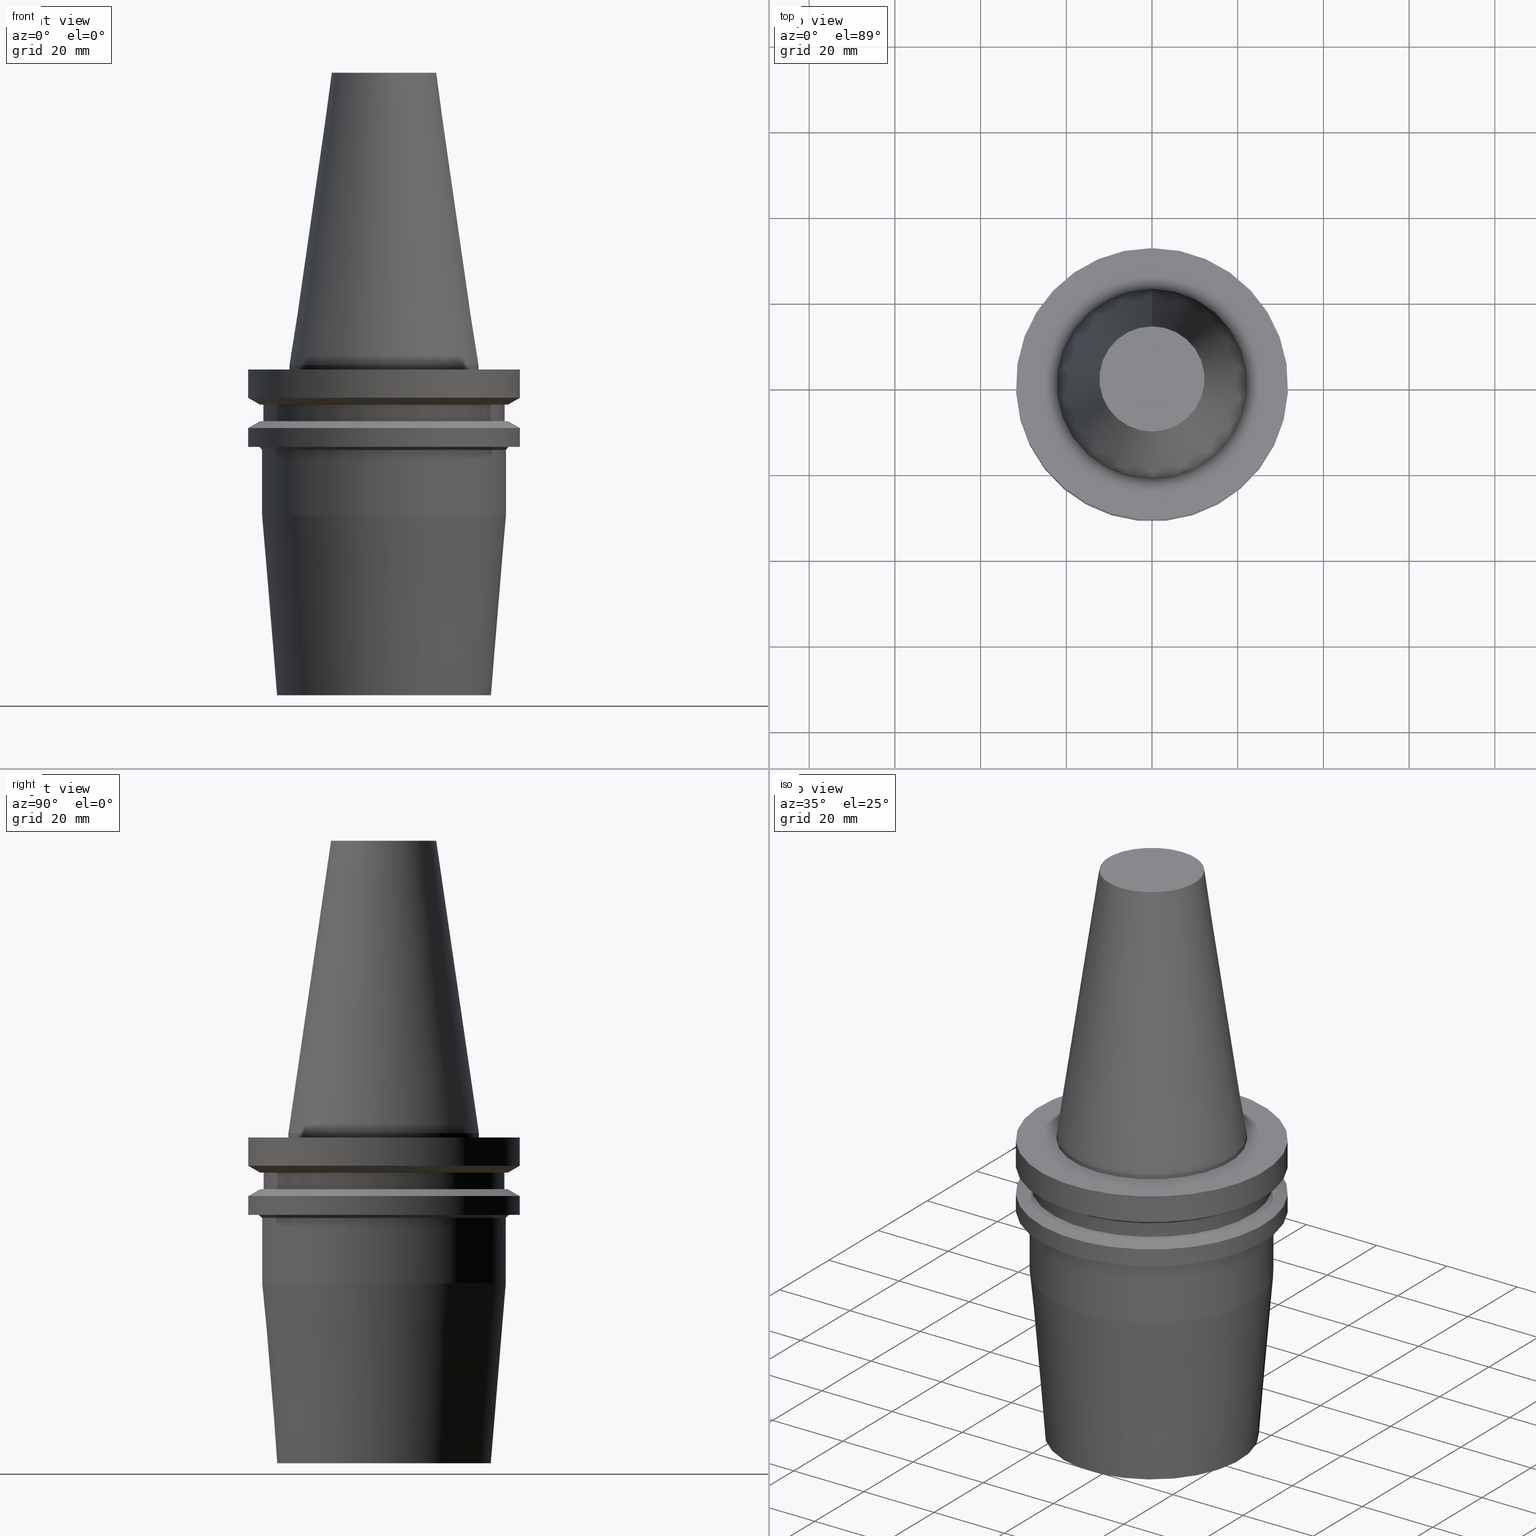
[diagram: canonical four-view strip — front | top / right | iso, engineering-drawing reading convention]
A machine part, canonical four-view strip (front | top / right | iso — engineering-drawing reading convention). The complete STEP part file that produces these views, byte-faithful:
ISO-10303-21;
HEADER;
FILE_DESCRIPTION((''),'1');
FILE_NAME('V:/01_Dxf_Field-HP\X2\FF71FF6FFF8CFF9F5916\X0\2013/BIGKAISER\X2\FF76FF80FF9BFF78FF9E63B28F095206\X0\_BKUS_201803/BCV_Y-S/BCV40Y-S50-3.stp','2018-03-13T06:02:44',(''),(''),'Spatial Interop R21 SP3','Kubotek KeyCreator 2011 V10.0.2 (22737)',' ');
FILE_SCHEMA(('automotive_design'));
ENDSEC;
DATA;
#1=MECHANICAL_DESIGN_GEOMETRIC_PRESENTATION_REPRESENTATION(' ',(#10,#11,#12,#13,#14,#15,#16,#17,#18,#19,#20,#21,#22,#23,#24,#25,#26,#27,#28,#29,#30,#31,#32,#33,#34,#35,#36,#37,#38,#39,#40,#41),#6);
#2=PRODUCT_DEFINITION_CONTEXT('',#42,'design');
#3=APPLICATION_PROTOCOL_DEFINITION('INTERNATIONAL STANDARD','automotive_design',1994,#42);
#4=PRODUCT_CATEGORY_RELATIONSHIP('NONE','NONE',#43,#44);
#5=SHAPE_DEFINITION_REPRESENTATION(#45,#46);
#6= (GEOMETRIC_REPRESENTATION_CONTEXT(3)GLOBAL_UNCERTAINTY_ASSIGNED_CONTEXT((#49))GLOBAL_UNIT_ASSIGNED_CONTEXT((#51,#52,#53))REPRESENTATION_CONTEXT('NONE','WORKSPACE'));
#10=STYLED_ITEM('',(#55),#56);
#11=STYLED_ITEM('',(#57,#58),#59);
#12=STYLED_ITEM('',(#60),#61);
#13=STYLED_ITEM('',(#62,#63),#64);
#14=STYLED_ITEM('',(#65,#66),#67);
#15=STYLED_ITEM('',(#68,#69),#70);
#16=STYLED_ITEM('',(#71),#72);
#17=STYLED_ITEM('',(#73,#74),#75);
#18=STYLED_ITEM('',(#76,#77),#78);
#19=STYLED_ITEM('',(#79),#80);
#20=STYLED_ITEM('',(#81),#82);
#21=STYLED_ITEM('',(#83,#84),#85);
#22=STYLED_ITEM('',(#86,#87),#88);
#23=STYLED_ITEM('',(#89,#90),#91);
#24=STYLED_ITEM('',(#92),#93);
#25=STYLED_ITEM('',(#94),#95);
#26=STYLED_ITEM('',(#96,#97),#98);
#27=STYLED_ITEM('',(#99),#100);
#28=STYLED_ITEM('',(#101,#102),#103);
#29=STYLED_ITEM('',(#104),#105);
#30=STYLED_ITEM('',(#106,#107),#108);
#31=STYLED_ITEM('',(#109),#110);
#32=STYLED_ITEM('',(#111),#112);
#33=STYLED_ITEM('',(#113,#114),#115);
#34=STYLED_ITEM('',(#116,#117),#118);
#35=STYLED_ITEM('',(#119),#120);
#36=STYLED_ITEM('',(#121,#122),#123);
#37=STYLED_ITEM('',(#124,#125),#126);
#38=STYLED_ITEM('',(#127),#128);
#39=STYLED_ITEM('',(#129,#130),#131);
#40=STYLED_ITEM('',(#132),#133);
#41=STYLED_ITEM('',(#134),#135);
#42=APPLICATION_CONTEXT(' ');
#43=PRODUCT_CATEGORY('part','NONE');
#44=PRODUCT_RELATED_PRODUCT_CATEGORY('detail',' ',(#136));
#45=PRODUCT_DEFINITION_SHAPE('NONE','NONE',#137);
#46=ADVANCED_BREP_SHAPE_REPRESENTATION('Unnamed[1]',(#85,#138),#6);
#49=UNCERTAINTY_MEASURE_WITH_UNIT(LENGTH_MEASURE(1.0E-006),#51,'','');
#51= (CONVERSION_BASED_UNIT('MILLIMETRE',#141)LENGTH_UNIT()NAMED_UNIT(#144));
#52= (NAMED_UNIT(#146)PLANE_ANGLE_UNIT()SI_UNIT($,.RADIAN.));
#53= (NAMED_UNIT(#146)SOLID_ANGLE_UNIT()SI_UNIT($,.STERADIAN.));
#55=PRESENTATION_STYLE_ASSIGNMENT((#152));
#56=EDGE_CURVE('Unnamed[1]',#153,#153,#154,.T.);
#57=PRESENTATION_STYLE_ASSIGNMENT((#155));
#58=PRESENTATION_STYLE_ASSIGNMENT((#156));
#59=ADVANCED_FACE('Unnamed[1]',(#157,#158),#159,.T.);
#60=PRESENTATION_STYLE_ASSIGNMENT((#160));
#61=EDGE_CURVE('Unnamed[1]',#161,#161,#162,.T.);
#62=PRESENTATION_STYLE_ASSIGNMENT((#163));
#63=PRESENTATION_STYLE_ASSIGNMENT((#164));
#64=ADVANCED_FACE('Unnamed[1]',(#165,#166),#167,.T.);
#65=PRESENTATION_STYLE_ASSIGNMENT((#168));
#66=PRESENTATION_STYLE_ASSIGNMENT((#169));
#67=ADVANCED_FACE('Unnamed[1]',(#170),#171,.T.);
#68=PRESENTATION_STYLE_ASSIGNMENT((#172));
#69=PRESENTATION_STYLE_ASSIGNMENT((#173));
#70=ADVANCED_FACE('Unnamed[1]',(#174,#175),#176,.T.);
#71=PRESENTATION_STYLE_ASSIGNMENT((#177));
#72=EDGE_CURVE('Unnamed[1]',#178,#178,#179,.T.);
#73=PRESENTATION_STYLE_ASSIGNMENT((#180));
#74=PRESENTATION_STYLE_ASSIGNMENT((#181));
#75=ADVANCED_FACE('Unnamed[1]',(#182,#183),#184,.T.);
#76=PRESENTATION_STYLE_ASSIGNMENT((#185));
#77=PRESENTATION_STYLE_ASSIGNMENT((#186));
#78=ADVANCED_FACE('Unnamed[1]',(#187,#188),#189,.T.);
#79=PRESENTATION_STYLE_ASSIGNMENT((#190));
#80=EDGE_CURVE('Unnamed[1]',#191,#191,#192,.T.);
#81=PRESENTATION_STYLE_ASSIGNMENT((#193));
#82=EDGE_CURVE('Unnamed[1]',#194,#194,#195,.T.);
#83=PRESENTATION_STYLE_ASSIGNMENT((#196));
#84=PRESENTATION_STYLE_ASSIGNMENT((#197));
#85=MANIFOLD_SOLID_BREP('Unnamed[1]',#198);
#86=PRESENTATION_STYLE_ASSIGNMENT((#199));
#87=PRESENTATION_STYLE_ASSIGNMENT((#200));
#88=ADVANCED_FACE('Unnamed[1]',(#201,#202),#203,.T.);
#89=PRESENTATION_STYLE_ASSIGNMENT((#204));
#90=PRESENTATION_STYLE_ASSIGNMENT((#205));
#91=ADVANCED_FACE('Unnamed[1]',(#206,#207),#208,.T.);
#92=PRESENTATION_STYLE_ASSIGNMENT((#209));
#93=EDGE_CURVE('Unnamed[1]',#210,#210,#211,.T.);
#94=PRESENTATION_STYLE_ASSIGNMENT((#212));
#95=EDGE_CURVE('Unnamed[1]',#213,#213,#214,.T.);
#96=PRESENTATION_STYLE_ASSIGNMENT((#215));
#97=PRESENTATION_STYLE_ASSIGNMENT((#216));
#98=ADVANCED_FACE('Unnamed[1]',(#217),#218,.T.);
#99=PRESENTATION_STYLE_ASSIGNMENT((#219));
#100=EDGE_CURVE('Unnamed[1]',#220,#220,#221,.T.);
#101=PRESENTATION_STYLE_ASSIGNMENT((#222));
#102=PRESENTATION_STYLE_ASSIGNMENT((#223));
#103=ADVANCED_FACE('Unnamed[1]',(#224,#225),#226,.T.);
#104=PRESENTATION_STYLE_ASSIGNMENT((#227));
#105=EDGE_CURVE('Unnamed[1]',#228,#228,#229,.T.);
#106=PRESENTATION_STYLE_ASSIGNMENT((#230));
#107=PRESENTATION_STYLE_ASSIGNMENT((#231));
#108=ADVANCED_FACE('Unnamed[1]',(#232,#233),#234,.T.);
#109=PRESENTATION_STYLE_ASSIGNMENT((#235));
#110=EDGE_CURVE('Unnamed[1]',#236,#236,#237,.T.);
#111=PRESENTATION_STYLE_ASSIGNMENT((#238));
#112=EDGE_CURVE('Unnamed[1]',#239,#239,#240,.T.);
#113=PRESENTATION_STYLE_ASSIGNMENT((#241));
#114=PRESENTATION_STYLE_ASSIGNMENT((#242));
#115=ADVANCED_FACE('Unnamed[1]',(#243,#244),#245,.T.);
#116=PRESENTATION_STYLE_ASSIGNMENT((#246));
#117=PRESENTATION_STYLE_ASSIGNMENT((#247));
#118=ADVANCED_FACE('Unnamed[1]',(#248,#249),#250,.T.);
#119=PRESENTATION_STYLE_ASSIGNMENT((#251));
#120=EDGE_CURVE('Unnamed[1]',#252,#252,#253,.T.);
#121=PRESENTATION_STYLE_ASSIGNMENT((#254));
#122=PRESENTATION_STYLE_ASSIGNMENT((#255));
#123=ADVANCED_FACE('Unnamed[1]',(#256,#257),#258,.T.);
#124=PRESENTATION_STYLE_ASSIGNMENT((#259));
#125=PRESENTATION_STYLE_ASSIGNMENT((#260));
#126=ADVANCED_FACE('Unnamed[1]',(#261,#262),#263,.T.);
#127=PRESENTATION_STYLE_ASSIGNMENT((#264));
#128=EDGE_CURVE('Unnamed[1]',#265,#265,#266,.T.);
#129=PRESENTATION_STYLE_ASSIGNMENT((#267));
#130=PRESENTATION_STYLE_ASSIGNMENT((#268));
#131=ADVANCED_FACE('Unnamed[1]',(#269,#270),#271,.T.);
#132=PRESENTATION_STYLE_ASSIGNMENT((#272));
#133=EDGE_CURVE('Unnamed[1]',#273,#273,#274,.T.);
#134=PRESENTATION_STYLE_ASSIGNMENT((#275));
#135=EDGE_CURVE('Unnamed[1]',#276,#276,#277,.T.);
#136=PRODUCT('Unnamed[1]','Unnamed[1]','PART-Unnamed[1]-DESC',(#278));
#137=PRODUCT_DEFINITION('NONE','NONE',#279,#2);
#138=AXIS2_PLACEMENT_3D('',#280,#281,#282);
#141=LENGTH_MEASURE_WITH_UNIT(LENGTH_MEASURE(1.0),#283);
#144=DIMENSIONAL_EXPONENTS(1.0,0.0,0.0,0.0,0.0,0.0,0.0);
#146=DIMENSIONAL_EXPONENTS(0.0,0.0,0.0,0.0,0.0,0.0,0.0);
#152=CURVE_STYLE('',#284,POSITIVE_LENGTH_MEASURE(1000.0),#285);
#153=VERTEX_POINT('',#286);
#154=CIRCLE('',#287,28.9680375505324);
#155=SURFACE_STYLE_USAGE(.BOTH.,#288);
#156=CURVE_STYLE('',#289,POSITIVE_LENGTH_MEASURE(1000.0),#290);
#157=FACE_BOUND('',#291,.T.);
#158=FACE_BOUND('',#292,.T.);
#159=CYLINDRICAL_SURFACE('',#293,22.225);
#160=CURVE_STYLE('',#294,POSITIVE_LENGTH_MEASURE(1000.0),#295);
#161=VERTEX_POINT('',#296);
#162=CIRCLE('',#297,28.5000000000002);
#163=SURFACE_STYLE_USAGE(.BOTH.,#298);
#164=CURVE_STYLE('',#299,POSITIVE_LENGTH_MEASURE(1000.0),#300);
#165=FACE_BOUND('',#301,.T.);
#166=FACE_BOUND('',#302,.T.);
#167=CONICAL_SURFACE('',#303,26.75,0.083141231888442);
#168=SURFACE_STYLE_USAGE(.BOTH.,#304);
#169=CURVE_STYLE('',#305,POSITIVE_LENGTH_MEASURE(1000.0),#306);
#170=FACE_OUTER_BOUND('',#307,.T.);
#171=PLANE('',#308);
#172=SURFACE_STYLE_USAGE(.BOTH.,#309);
#173=CURVE_STYLE('',#310,POSITIVE_LENGTH_MEASURE(1000.0),#311);
#174=FACE_BOUND('',#312,.T.);
#175=FACE_BOUND('',#313,.T.);
#176=CONICAL_SURFACE('',#314,30.3590187752662,1.0471975511966);
#177=CURVE_STYLE('',#315,POSITIVE_LENGTH_MEASURE(1000.0),#316);
#178=VERTEX_POINT('',#317);
#179=CIRCLE('',#318,28.18);
#180=SURFACE_STYLE_USAGE(.BOTH.,#319);
#181=CURVE_STYLE('',#320,POSITIVE_LENGTH_MEASURE(1000.0),#321);
#182=FACE_BOUND('',#322,.T.);
#183=FACE_BOUND('',#323,.T.);
#184=CONICAL_SURFACE('',#324,28.8500000000001,0.785398163397339);
#185=SURFACE_STYLE_USAGE(.BOTH.,#325);
#186=CURVE_STYLE('',#326,POSITIVE_LENGTH_MEASURE(1000.0),#327);
#187=FACE_BOUND('',#328,.T.);
#188=FACE_OUTER_BOUND('',#329,.T.);
#189=PLANE('',#330);
#190=CURVE_STYLE('',#331,POSITIVE_LENGTH_MEASURE(1000.0),#332);
#191=VERTEX_POINT('',#333);
#192=CIRCLE('',#334,28.5000000000001);
#193=CURVE_STYLE('',#335,POSITIVE_LENGTH_MEASURE(1000.0),#336);
#194=VERTEX_POINT('',#337);
#195=CIRCLE('',#338,22.225);
#196=SURFACE_STYLE_USAGE(.BOTH.,#339);
#197=CURVE_STYLE('',#340,POSITIVE_LENGTH_MEASURE(1000.0),#341);
#198=CLOSED_SHELL('',(#67,#103,#59,#115,#118,#108,#91,#123,#88,#70,#131,#78,#75,#126,#64,#98));
#199=SURFACE_STYLE_USAGE(.BOTH.,#342);
#200=CURVE_STYLE('',#343,POSITIVE_LENGTH_MEASURE(1000.0),#344);
#201=FACE_OUTER_BOUND('',#345,.T.);
#202=FACE_BOUND('',#346,.T.);
#203=PLANE('',#347);
#204=SURFACE_STYLE_USAGE(.BOTH.,#348);
#205=CURVE_STYLE('',#349,POSITIVE_LENGTH_MEASURE(1000.0),#350);
#206=FACE_BOUND('',#351,.T.);
#207=FACE_OUTER_BOUND('',#352,.T.);
#208=PLANE('',#353);
#209=CURVE_STYLE('',#354,POSITIVE_LENGTH_MEASURE(1000.0),#355);
#210=VERTEX_POINT('',#356);
#211=CIRCLE('',#357,31.75);
#212=CURVE_STYLE('',#358,POSITIVE_LENGTH_MEASURE(1000.0),#359);
#213=VERTEX_POINT('',#360);
#214=CIRCLE('',#361,29.2);
#215=SURFACE_STYLE_USAGE(.BOTH.,#362);
#216=CURVE_STYLE('',#363,POSITIVE_LENGTH_MEASURE(1000.0),#364);
#217=FACE_OUTER_BOUND('',#365,.T.);
#218=PLANE('',#366);
#219=CURVE_STYLE('',#367,POSITIVE_LENGTH_MEASURE(1000.0),#368);
#220=VERTEX_POINT('',#369);
#221=CIRCLE('',#370,22.225);
#222=SURFACE_STYLE_USAGE(.BOTH.,#371);
#223=CURVE_STYLE('',#372,POSITIVE_LENGTH_MEASURE(1000.0),#373);
#224=FACE_BOUND('',#374,.T.);
#225=FACE_BOUND('',#375,.T.);
#226=CONICAL_SURFACE('',#376,17.2484375007384,0.144812498217751);
#227=CURVE_STYLE('',#377,POSITIVE_LENGTH_MEASURE(1000.0),#378);
#228=VERTEX_POINT('',#379);
#229=CIRCLE('',#380,28.18);
#230=SURFACE_STYLE_USAGE(.BOTH.,#381);
#231=CURVE_STYLE('',#382,POSITIVE_LENGTH_MEASURE(1000.0),#383);
#232=FACE_BOUND('',#384,.T.);
#233=FACE_BOUND('',#385,.T.);
#234=CONICAL_SURFACE('',#386,30.3590187752662,1.0471975511966);
#235=CURVE_STYLE('',#387,POSITIVE_LENGTH_MEASURE(1000.0),#388);
#236=VERTEX_POINT('',#389);
#237=CIRCLE('',#390,25.0);
#238=CURVE_STYLE('',#391,POSITIVE_LENGTH_MEASURE(1000.0),#392);
#239=VERTEX_POINT('',#393);
#240=CIRCLE('',#394,12.2718750014768);
#241=SURFACE_STYLE_USAGE(.BOTH.,#395);
#242=CURVE_STYLE('',#396,POSITIVE_LENGTH_MEASURE(1000.0),#397);
#243=FACE_OUTER_BOUND('',#398,.T.);
#244=FACE_BOUND('',#399,.T.);
#245=PLANE('',#400);
#246=SURFACE_STYLE_USAGE(.BOTH.,#401);
#247=CURVE_STYLE('',#402,POSITIVE_LENGTH_MEASURE(1000.0),#403);
#248=FACE_BOUND('',#404,.T.);
#249=FACE_BOUND('',#405,.T.);
#250=CYLINDRICAL_SURFACE('',#406,31.75);
#251=CURVE_STYLE('',#407,POSITIVE_LENGTH_MEASURE(1000.0),#408);
#252=VERTEX_POINT('',#409);
#253=CIRCLE('',#410,31.75);
#254=SURFACE_STYLE_USAGE(.BOTH.,#411);
#255=CURVE_STYLE('',#412,POSITIVE_LENGTH_MEASURE(1000.0),#413);
#256=FACE_BOUND('',#414,.T.);
#257=FACE_BOUND('',#415,.T.);
#258=CYLINDRICAL_SURFACE('',#416,28.18);
#259=SURFACE_STYLE_USAGE(.BOTH.,#417);
#260=CURVE_STYLE('',#418,POSITIVE_LENGTH_MEASURE(1000.0),#419);
#261=FACE_BOUND('',#420,.T.);
#262=FACE_BOUND('',#421,.T.);
#263=CYLINDRICAL_SURFACE('',#422,28.5000000000001);
#264=CURVE_STYLE('',#423,POSITIVE_LENGTH_MEASURE(1000.0),#424);
#265=VERTEX_POINT('',#425);
#266=CIRCLE('',#426,31.75);
#267=SURFACE_STYLE_USAGE(.BOTH.,#427);
#268=CURVE_STYLE('',#428,POSITIVE_LENGTH_MEASURE(1000.0),#429);
#269=FACE_BOUND('',#430,.T.);
#270=FACE_BOUND('',#431,.T.);
#271=CYLINDRICAL_SURFACE('',#432,31.75);
#272=CURVE_STYLE('',#433,POSITIVE_LENGTH_MEASURE(1000.0),#434);
#273=VERTEX_POINT('',#435);
#274=CIRCLE('',#436,31.75);
#275=CURVE_STYLE('',#437,POSITIVE_LENGTH_MEASURE(1000.0),#438);
#276=VERTEX_POINT('',#439);
#277=CIRCLE('',#440,28.9680375505323);
#278=PRODUCT_CONTEXT('',#42,'mechanical');
#279=PRODUCT_DEFINITION_FORMATION_WITH_SPECIFIED_SOURCE(' ','NONE',#136,.NOT_KNOWN.);
#280=CARTESIAN_POINT('',(0.0,0.0,0.0));
#281=DIRECTION('',(0.0,0.0,1.0));
#282=DIRECTION('',(1.0,0.0,0.0));
#283= (NAMED_UNIT(#144)LENGTH_UNIT()SI_UNIT(.MILLI.,.METRE.));
#284=DRAUGHTING_PRE_DEFINED_CURVE_FONT('continuous');
#285=COLOUR_RGB('',0.0,1.0,0.0);
#286=CARTESIAN_POINT('',(7.98469713044073E-016,28.9680375505324,-13.04));
#287=AXIS2_PLACEMENT_3D('',#442,#443,#444);
#288=SURFACE_SIDE_STYLE('',(#445));
#289=DRAUGHTING_PRE_DEFINED_CURVE_FONT('continuous');
#290=COLOUR_RGB('',0.0,1.0,0.0);
#291=EDGE_LOOP('',(#446));
#292=EDGE_LOOP('',(#447));
#293=AXIS2_PLACEMENT_3D('',#448,#449,#450);
#294=DRAUGHTING_PRE_DEFINED_CURVE_FONT('continuous');
#295=COLOUR_RGB('',0.0,1.0,0.0);
#296=CARTESIAN_POINT('',(1.20933871415802E-015,28.5000000000002,-19.7500000000001));
#297=AXIS2_PLACEMENT_3D('',#451,#452,#453);
#298=SURFACE_SIDE_STYLE('',(#454));
#299=DRAUGHTING_PRE_DEFINED_CURVE_FONT('continuous');
#300=COLOUR_RGB('',0.0,1.0,0.0);
#301=EDGE_LOOP('',(#455));
#302=EDGE_LOOP('',(#456));
#303=AXIS2_PLACEMENT_3D('',#457,#458,#459);
#304=SURFACE_SIDE_STYLE('',(#460));
#305=DRAUGHTING_PRE_DEFINED_CURVE_FONT('continuous');
#306=COLOUR_RGB('',0.0,1.0,0.0);
#307=EDGE_LOOP('',(#461));
#308=AXIS2_PLACEMENT_3D('',#462,#463,#464);
#309=SURFACE_SIDE_STYLE('',(#465));
#310=DRAUGHTING_PRE_DEFINED_CURVE_FONT('continuous');
#311=COLOUR_RGB('',0.0,1.0,0.0);
#312=EDGE_LOOP('',(#466));
#313=EDGE_LOOP('',(#467));
#314=AXIS2_PLACEMENT_3D('',#468,#469,#470);
#315=DRAUGHTING_PRE_DEFINED_CURVE_FONT('continuous');
#316=COLOUR_RGB('',0.0,1.0,0.0);
#317=CARTESIAN_POINT('',(5.63337527607784E-016,28.18,-9.20000000000003));
#318=AXIS2_PLACEMENT_3D('',#471,#472,#473);
#319=SURFACE_SIDE_STYLE('',(#474));
#320=DRAUGHTING_PRE_DEFINED_CURVE_FONT('continuous');
#321=COLOUR_RGB('',0.0,1.0,0.0);
#322=EDGE_LOOP('',(#475));
#323=EDGE_LOOP('',(#476));
#324=AXIS2_PLACEMENT_3D('',#477,#478,#479);
#325=SURFACE_SIDE_STYLE('',(#480));
#326=DRAUGHTING_PRE_DEFINED_CURVE_FONT('continuous');
#327=COLOUR_RGB('',0.0,1.0,0.0);
#328=EDGE_LOOP('',(#481));
#329=EDGE_LOOP('',(#482));
#330=AXIS2_PLACEMENT_3D('',#483,#484,#485);
#331=DRAUGHTING_PRE_DEFINED_CURVE_FONT('continuous');
#332=COLOUR_RGB('',0.0,1.0,0.0);
#333=CARTESIAN_POINT('',(2.14313189850787E-015,28.5,-35.0));
#334=AXIS2_PLACEMENT_3D('',#486,#487,#488);
#335=DRAUGHTING_PRE_DEFINED_CURVE_FONT('continuous');
#336=COLOUR_RGB('',0.0,1.0,0.0);
#337=CARTESIAN_POINT('',(6.12323399573674E-017,22.225,-0.999999999999997));
#338=AXIS2_PLACEMENT_3D('',#489,#490,#491);
#339=SURFACE_SIDE_STYLE('',(#492));
#340=DRAUGHTING_PRE_DEFINED_CURVE_FONT('continuous');
#341=COLOUR_RGB('',0.0,1.0,0.0);
#342=SURFACE_SIDE_STYLE('',(#493));
#343=DRAUGHTING_PRE_DEFINED_CURVE_FONT('continuous');
#344=COLOUR_RGB('',0.0,1.0,0.0);
#345=EDGE_LOOP('',(#494));
#346=EDGE_LOOP('',(#495));
#347=AXIS2_PLACEMENT_3D('',#496,#497,#498);
#348=SURFACE_SIDE_STYLE('',(#499));
#349=DRAUGHTING_PRE_DEFINED_CURVE_FONT('continuous');
#350=COLOUR_RGB('',0.0,1.0,0.0);
#351=EDGE_LOOP('',(#500));
#352=EDGE_LOOP('',(#501));
#353=AXIS2_PLACEMENT_3D('',#502,#503,#504);
#354=DRAUGHTING_PRE_DEFINED_CURVE_FONT('continuous');
#355=COLOUR_RGB('',0.0,1.0,0.0);
#356=CARTESIAN_POINT('',(1.16647607618786E-015,31.75,-19.05));
#357=AXIS2_PLACEMENT_3D('',#505,#506,#507);
#358=DRAUGHTING_PRE_DEFINED_CURVE_FONT('continuous');
#359=COLOUR_RGB('',0.0,1.0,0.0);
#360=CARTESIAN_POINT('',(1.16647607618786E-015,29.2,-19.0500000000001));
#361=AXIS2_PLACEMENT_3D('',#508,#509,#510);
#362=SURFACE_SIDE_STYLE('',(#511));
#363=DRAUGHTING_PRE_DEFINED_CURVE_FONT('continuous');
#364=COLOUR_RGB('',0.0,1.0,0.0);
#365=EDGE_LOOP('',(#512));
#366=AXIS2_PLACEMENT_3D('',#513,#514,#515);
#367=DRAUGHTING_PRE_DEFINED_CURVE_FONT('continuous');
#368=COLOUR_RGB('',0.0,1.0,0.0);
#369=CARTESIAN_POINT('',(-2.7394427528964E-031,22.225,2.72177751110499E-015));
#370=AXIS2_PLACEMENT_3D('',#516,#517,#518);
#371=SURFACE_SIDE_STYLE('',(#519));
#372=DRAUGHTING_PRE_DEFINED_CURVE_FONT('continuous');
#373=COLOUR_RGB('',0.0,1.0,0.0);
#374=EDGE_LOOP('',(#520));
#375=EDGE_LOOP('',(#521));
#376=AXIS2_PLACEMENT_3D('',#522,#523,#524);
#377=DRAUGHTING_PRE_DEFINED_CURVE_FONT('continuous');
#378=COLOUR_RGB('',0.0,1.0,0.0);
#379=CARTESIAN_POINT('',(7.98469713044073E-016,28.18,-13.04));
#380=AXIS2_PLACEMENT_3D('',#525,#526,#527);
#381=SURFACE_SIDE_STYLE('',(#528));
#382=DRAUGHTING_PRE_DEFINED_CURVE_FONT('continuous');
#383=COLOUR_RGB('',0.0,1.0,0.0);
#384=EDGE_LOOP('',(#529));
#385=EDGE_LOOP('',(#530));
#386=AXIS2_PLACEMENT_3D('',#531,#532,#533);
#387=DRAUGHTING_PRE_DEFINED_CURVE_FONT('continuous');
#388=COLOUR_RGB('',0.0,1.0,0.0);
#389=CARTESIAN_POINT('',(4.71489017671733E-015,24.9999999999999,-77.0000000000003));
#390=AXIS2_PLACEMENT_3D('',#534,#535,#536);
#391=DRAUGHTING_PRE_DEFINED_CURVE_FONT('continuous');
#392=COLOUR_RGB('',0.0,1.0,0.0);
#393=CARTESIAN_POINT('',(-4.17910720209034E-015,12.2718750014768,68.25));
#394=AXIS2_PLACEMENT_3D('',#537,#538,#539);
#395=SURFACE_SIDE_STYLE('',(#540));
#396=DRAUGHTING_PRE_DEFINED_CURVE_FONT('continuous');
#397=COLOUR_RGB('',0.0,1.0,0.0);
#398=EDGE_LOOP('',(#541));
#399=EDGE_LOOP('',(#542));
#400=AXIS2_PLACEMENT_3D('',#543,#544,#545);
#401=SURFACE_SIDE_STYLE('',(#546));
#402=DRAUGHTING_PRE_DEFINED_CURVE_FONT('continuous');
#403=COLOUR_RGB('',0.0,1.0,0.0);
#404=EDGE_LOOP('',(#547));
#405=EDGE_LOOP('',(#548));
#406=AXIS2_PLACEMENT_3D('',#549,#550,#551);
#407=DRAUGHTING_PRE_DEFINED_CURVE_FONT('continuous');
#408=COLOUR_RGB('',0.0,1.0,0.0);
#409=CARTESIAN_POINT('',(8.96819062676333E-016,31.75,-14.6461667690755));
#410=AXIS2_PLACEMENT_3D('',#552,#553,#554);
#411=SURFACE_SIDE_STYLE('',(#555));
#412=DRAUGHTING_PRE_DEFINED_CURVE_FONT('continuous');
#413=COLOUR_RGB('',0.0,1.0,0.0);
#414=EDGE_LOOP('',(#556));
#415=EDGE_LOOP('',(#557));
#416=AXIS2_PLACEMENT_3D('',#558,#559,#560);
#417=SURFACE_SIDE_STYLE('',(#561));
#418=DRAUGHTING_PRE_DEFINED_CURVE_FONT('continuous');
#419=COLOUR_RGB('',0.0,1.0,0.0);
#420=EDGE_LOOP('',(#562));
#421=EDGE_LOOP('',(#563));
#422=AXIS2_PLACEMENT_3D('',#564,#565,#566);
#423=DRAUGHTING_PRE_DEFINED_CURVE_FONT('continuous');
#424=COLOUR_RGB('',0.0,1.0,0.0);
#425=CARTESIAN_POINT('',(4.64988177975518E-016,31.75,-7.59383323092439));
#426=AXIS2_PLACEMENT_3D('',#567,#568,#569);
#427=SURFACE_SIDE_STYLE('',(#570));
#428=DRAUGHTING_PRE_DEFINED_CURVE_FONT('continuous');
#429=COLOUR_RGB('',0.0,1.0,0.0);
#430=EDGE_LOOP('',(#571));
#431=EDGE_LOOP('',(#572));
#432=AXIS2_PLACEMENT_3D('',#573,#574,#575);
#433=DRAUGHTING_PRE_DEFINED_CURVE_FONT('continuous');
#434=COLOUR_RGB('',0.0,1.0,0.0);
#435=CARTESIAN_POINT('',(6.12323399573673E-017,31.75,-0.999999999999996));
#436=AXIS2_PLACEMENT_3D('',#576,#577,#578);
#437=DRAUGHTING_PRE_DEFINED_CURVE_FONT('continuous');
#438=COLOUR_RGB('',0.0,1.0,0.0);
#439=CARTESIAN_POINT('',(5.63337527607784E-016,28.9680375505323,-9.20000000000003));
#440=AXIS2_PLACEMENT_3D('',#579,#580,#581);
#442=CARTESIAN_POINT('',(7.98469713044073E-016,-1.8577383154557E-014,-13.04));
#443=DIRECTION('',(6.12323399573677E-017,-1.22696610407827E-016,-1.0));
#444=DIRECTION('',(2.68584782934724E-033,1.0,-1.22696610407827E-016));
#445=SURFACE_STYLE_FILL_AREA(#582);
#446=ORIENTED_EDGE('',*,*,#82,.F.);
#447=ORIENTED_EDGE('',*,*,#100,.T.);
#448=CARTESIAN_POINT('',(3.06161699786838E-017,-1.70387676600426E-014,-0.5));
#449=DIRECTION('',(6.12323399573676E-017,-1.22696610407854E-016,-1.0));
#450=DIRECTION('',(2.6858478293441E-033,1.0,-1.22696610407854E-016));
#451=CARTESIAN_POINT('',(1.20933871415802E-015,-1.94006774103936E-014,-19.7500000000001));
#452=DIRECTION('',(6.12323399573677E-017,-1.22696610407861E-016,-1.0));
#453=DIRECTION('',(2.68584782934324E-033,1.0,-1.22696610407861E-016));
#454=SURFACE_STYLE_FILL_AREA(#583);
#455=ORIENTED_EDGE('',*,*,#110,.F.);
#456=ORIENTED_EDGE('',*,*,#80,.T.);
#457=CARTESIAN_POINT('',(3.4290110376126E-015,-2.3848429537678E-014,-56.0000000000002));
#458=DIRECTION('',(-6.12323399573677E-017,1.22696610407857E-016,1.0));
#459=DIRECTION('',(2.68584782934555E-033,1.0,-1.22696610407857E-016));
#460=SURFACE_STYLE_FILL_AREA(#584);
#461=ORIENTED_EDGE('',*,*,#112,.F.);
#462=CARTESIAN_POINT('',(-4.17910720209034E-015,6.13593750073841,68.25));
#463=DIRECTION('',(-6.12323399573677E-017,1.03553723205811E-015,1.0));
#464=DIRECTION('',(-5.8581215101125E-032,-1.0,1.03553723205811E-015));
#465=SURFACE_STYLE_FILL_AREA(#585);
#466=ORIENTED_EDGE('',*,*,#120,.F.);
#467=ORIENTED_EDGE('',*,*,#56,.T.);
#468=CARTESIAN_POINT('',(8.47644387860203E-016,-1.86759187637146E-014,-13.8430833845377));
#469=DIRECTION('',(6.12323399573677E-017,-1.22696610407864E-016,-1.0));
#470=DIRECTION('',(2.68584782933801E-033,1.0,-1.22696610407864E-016));
#471=CARTESIAN_POINT('',(5.63337527607784E-016,-1.81062281705908E-014,-9.20000000000003));
#472=DIRECTION('',(6.12323399573676E-017,-1.22696610407825E-016,-1.0));
#473=DIRECTION('',(2.68584782934158E-033,1.0,-1.22696610407825E-016));
#474=SURFACE_STYLE_FILL_AREA(#586);
#475=ORIENTED_EDGE('',*,*,#61,.F.);
#476=ORIENTED_EDGE('',*,*,#95,.T.);
#477=CARTESIAN_POINT('',(1.18790739517294E-015,-1.93577335967509E-014,-19.4000000000001));
#478=DIRECTION('',(-6.12323399573677E-017,1.22696610407862E-016,1.0));
#479=DIRECTION('',(2.68584782934096E-033,1.0,-1.22696610407862E-016));
#480=SURFACE_STYLE_FILL_AREA(#587);
#481=ORIENTED_EDGE('',*,*,#95,.F.);
#482=ORIENTED_EDGE('',*,*,#93,.T.);
#483=CARTESIAN_POINT('',(1.16647607618786E-015,30.475,-19.0500000000001));
#484=DIRECTION('',(6.12323399573677E-017,2.38072225385846E-014,-1.0));
#485=DIRECTION('',(-1.46259909665409E-030,1.0,2.38072225385846E-014));
#486=CARTESIAN_POINT('',(2.14313189850787E-015,-2.12718007191132E-014,-35.0));
#487=DIRECTION('',(6.12323399573677E-017,-1.22696610407861E-016,-1.0));
#488=DIRECTION('',(2.68584782934325E-033,1.0,-1.22696610407861E-016));
#489=CARTESIAN_POINT('',(6.12323399573677E-017,-1.71001159652465E-014,-1.0));
#490=DIRECTION('',(6.12323399573676E-017,-1.22696610407854E-016,-1.0));
#491=DIRECTION('',(2.6858478293441E-033,1.0,-1.22696610407854E-016));
#492=SURFACE_STYLE_FILL_AREA(#588);
#493=SURFACE_STYLE_FILL_AREA(#589);
#494=ORIENTED_EDGE('',*,*,#56,.F.);
#495=ORIENTED_EDGE('',*,*,#105,.T.);
#496=CARTESIAN_POINT('',(7.98469713044073E-016,28.5740187752662,-13.04));
#497=DIRECTION('',(-6.12323399573677E-017,-1.22464679914735E-016,1.0));
#498=DIRECTION('',(1.23259516440783E-032,-1.0,-1.22464679914735E-016));
#499=SURFACE_STYLE_FILL_AREA(#590);
#500=ORIENTED_EDGE('',*,*,#72,.F.);
#501=ORIENTED_EDGE('',*,*,#135,.T.);
#502=CARTESIAN_POINT('',(5.63337527607784E-016,28.5740187752661,-9.20000000000003));
#503=DIRECTION('',(6.12323399573677E-017,1.22464679914735E-016,-1.0));
#504=DIRECTION('',(-1.23259516440783E-032,1.0,1.22464679914735E-016));
#505=CARTESIAN_POINT('',(1.16647607618786E-015,-1.93147897831081E-014,-19.05));
#506=DIRECTION('',(6.12323399573677E-017,-1.22696610407795E-016,-1.0));
#507=DIRECTION('',(2.68584782934088E-033,1.0,-1.22696610407795E-016));
#508=CARTESIAN_POINT('',(1.16647607618786E-015,-1.93147897831081E-014,-19.0500000000001));
#509=DIRECTION('',(6.12323399573677E-017,-1.22696610407863E-016,-1.0));
#510=DIRECTION('',(2.68584782934487E-033,1.0,-1.22696610407863E-016));
#511=SURFACE_STYLE_FILL_AREA(#591);
#512=ORIENTED_EDGE('',*,*,#110,.T.);
#513=CARTESIAN_POINT('',(4.71489017671733E-015,12.5,-77.0000000000003));
#514=DIRECTION('',(6.12323399573677E-017,1.2593330571309E-015,-1.0));
#515=DIRECTION('',(-8.19390626045592E-032,1.0,1.2593330571309E-015));
#516=CARTESIAN_POINT('',(2.09262850008981E-046,-1.69774193548387E-014,-2.07913422706855E-030));
#517=DIRECTION('',(6.12323399573676E-017,-1.22696610407854E-016,-1.0));
#518=DIRECTION('',(2.6858478293441E-033,1.0,-1.22696610407854E-016));
#519=SURFACE_STYLE_FILL_AREA(#592);
#520=ORIENTED_EDGE('',*,*,#100,.F.);
#521=ORIENTED_EDGE('',*,*,#112,.T.);
#522=CARTESIAN_POINT('',(-2.08955360104517E-015,-1.2790397524671E-014,34.125));
#523=DIRECTION('',(6.12323399573676E-017,-1.22696610407808E-016,-1.0));
#524=DIRECTION('',(2.68584782933486E-033,1.0,-1.22696610407808E-016));
#525=CARTESIAN_POINT('',(7.98469713044073E-016,-1.8577383154557E-014,-13.04));
#526=DIRECTION('',(6.12323399573677E-017,-1.22696610407825E-016,-1.0));
#527=DIRECTION('',(2.68584782934158E-033,1.0,-1.22696610407825E-016));
#528=SURFACE_STYLE_FILL_AREA(#593);
#529=ORIENTED_EDGE('',*,*,#135,.F.);
#530=ORIENTED_EDGE('',*,*,#128,.T.);
#531=CARTESIAN_POINT('',(5.14162852791651E-016,-1.80076925614332E-014,-8.3969166154622));
#532=DIRECTION('',(-6.12323399573677E-017,1.22696610407864E-016,1.0));
#533=DIRECTION('',(2.68584782933801E-033,1.0,-1.22696610407864E-016));
#534=CARTESIAN_POINT('',(4.71489017671733E-015,-2.64250583562428E-014,-77.0000000000003));
#535=DIRECTION('',(6.12323399573677E-017,-1.22696610407853E-016,-1.0));
#536=DIRECTION('',(2.68584782934099E-033,1.0,-1.22696610407853E-016));
#537=CARTESIAN_POINT('',(-4.17910720209034E-015,-8.60337569450326E-015,68.25));
#538=DIRECTION('',(6.12323399573677E-017,-1.22696610407856E-016,-1.0));
#539=DIRECTION('',(2.68584782934005E-033,1.0,-1.22696610407856E-016));
#540=SURFACE_STYLE_FILL_AREA(#594);
#541=ORIENTED_EDGE('',*,*,#133,.F.);
#542=ORIENTED_EDGE('',*,*,#82,.T.);
#543=CARTESIAN_POINT('',(6.12323399573673E-017,26.9875,-0.999999999999997));
#544=DIRECTION('',(-6.12323399573677E-017,-1.22464679914735E-016,1.0));
#545=DIRECTION('',(1.23259516440783E-032,-1.0,-1.22464679914735E-016));
#546=SURFACE_STYLE_FILL_AREA(#595);
#547=ORIENTED_EDGE('',*,*,#128,.F.);
#548=ORIENTED_EDGE('',*,*,#133,.T.);
#549=CARTESIAN_POINT('',(2.63110258966442E-016,-1.7504636458761E-014,-4.29691661546218));
#550=DIRECTION('',(6.12323399573677E-017,-1.22696610407796E-016,-1.0));
#551=DIRECTION('',(2.68584782933523E-033,1.0,-1.22696610407796E-016));
#552=CARTESIAN_POINT('',(8.96819062676333E-016,-1.87744543728722E-014,-14.6461667690755));
#553=DIRECTION('',(6.12323399573677E-017,-1.22696610407796E-016,-1.0));
#554=DIRECTION('',(2.68584782933523E-033,1.0,-1.22696610407796E-016));
#555=SURFACE_STYLE_FILL_AREA(#596);
#556=ORIENTED_EDGE('',*,*,#105,.F.);
#557=ORIENTED_EDGE('',*,*,#72,.T.);
#558=CARTESIAN_POINT('',(6.80903620325929E-016,-1.83418056625739E-014,-11.12));
#559=DIRECTION('',(6.12323399573677E-017,-1.22696610407825E-016,-1.0));
#560=DIRECTION('',(2.68584782934158E-033,1.0,-1.22696610407825E-016));
#561=SURFACE_STYLE_FILL_AREA(#597);
#562=ORIENTED_EDGE('',*,*,#80,.F.);
#563=ORIENTED_EDGE('',*,*,#61,.T.);
#564=CARTESIAN_POINT('',(1.67623530633294E-015,-2.03362390647534E-014,-27.375));
#565=DIRECTION('',(6.12323399573677E-017,-1.22696610407861E-016,-1.0));
#566=DIRECTION('',(2.68584782934324E-033,1.0,-1.22696610407861E-016));
#567=CARTESIAN_POINT('',(4.64988177975517E-016,-1.79091569522755E-014,-7.59383323092437));
#568=DIRECTION('',(6.12323399573677E-017,-1.22696610407796E-016,-1.0));
#569=DIRECTION('',(2.68584782933523E-033,1.0,-1.22696610407796E-016));
#570=SURFACE_STYLE_FILL_AREA(#598);
#571=ORIENTED_EDGE('',*,*,#93,.F.);
#572=ORIENTED_EDGE('',*,*,#120,.T.);
#573=CARTESIAN_POINT('',(1.03164756943209E-015,-1.90446220779902E-014,-16.8480833845378));
#574=DIRECTION('',(6.12323399573677E-017,-1.22696610407795E-016,-1.0));
#575=DIRECTION('',(2.68584782933523E-033,1.0,-1.22696610407795E-016));
#576=CARTESIAN_POINT('',(6.12323399573668E-017,-1.71001159652465E-014,-0.999999999999986));
#577=DIRECTION('',(6.12323399573677E-017,-1.22696610407796E-016,-1.0));
#578=DIRECTION('',(2.68584782933523E-033,1.0,-1.22696610407796E-016));
#579=CARTESIAN_POINT('',(5.63337527607784E-016,-1.81062281705908E-014,-9.20000000000003));
#580=DIRECTION('',(6.12323399573677E-017,-1.22696610407827E-016,-1.0));
#581=DIRECTION('',(2.68584782934106E-033,1.0,-1.22696610407827E-016));
#582=FILL_AREA_STYLE('',(#599));
#583=FILL_AREA_STYLE('',(#600));
#584=FILL_AREA_STYLE('',(#601));
#585=FILL_AREA_STYLE('',(#602));
#586=FILL_AREA_STYLE('',(#603));
#587=FILL_AREA_STYLE('',(#604));
#588=FILL_AREA_STYLE('',(#605));
#589=FILL_AREA_STYLE('',(#606));
#590=FILL_AREA_STYLE('',(#607));
#591=FILL_AREA_STYLE('',(#608));
#592=FILL_AREA_STYLE('',(#609));
#593=FILL_AREA_STYLE('',(#610));
#594=FILL_AREA_STYLE('',(#611));
#595=FILL_AREA_STYLE('',(#612));
#596=FILL_AREA_STYLE('',(#613));
#597=FILL_AREA_STYLE('',(#614));
#598=FILL_AREA_STYLE('',(#615));
#599=FILL_AREA_STYLE_COLOUR('',#616);
#600=FILL_AREA_STYLE_COLOUR('',#617);
#601=FILL_AREA_STYLE_COLOUR('',#618);
#602=FILL_AREA_STYLE_COLOUR('',#619);
#603=FILL_AREA_STYLE_COLOUR('',#620);
#604=FILL_AREA_STYLE_COLOUR('',#621);
#605=FILL_AREA_STYLE_COLOUR('',#622);
#606=FILL_AREA_STYLE_COLOUR('',#623);
#607=FILL_AREA_STYLE_COLOUR('',#624);
#608=FILL_AREA_STYLE_COLOUR('',#625);
#609=FILL_AREA_STYLE_COLOUR('',#626);
#610=FILL_AREA_STYLE_COLOUR('',#627);
#611=FILL_AREA_STYLE_COLOUR('',#628);
#612=FILL_AREA_STYLE_COLOUR('',#629);
#613=FILL_AREA_STYLE_COLOUR('',#630);
#614=FILL_AREA_STYLE_COLOUR('',#631);
#615=FILL_AREA_STYLE_COLOUR('',#632);
#616=COLOUR_RGB('',0.0,1.0,0.0);
#617=COLOUR_RGB('',0.0,1.0,0.0);
#618=COLOUR_RGB('',0.0,1.0,0.0);
#619=COLOUR_RGB('',0.0,1.0,0.0);
#620=COLOUR_RGB('',0.0,1.0,0.0);
#621=COLOUR_RGB('',0.0,1.0,0.0);
#622=COLOUR_RGB('',0.0,1.0,0.0);
#623=COLOUR_RGB('',0.0,1.0,0.0);
#624=COLOUR_RGB('',0.0,1.0,0.0);
#625=COLOUR_RGB('',0.0,1.0,0.0);
#626=COLOUR_RGB('',0.0,1.0,0.0);
#627=COLOUR_RGB('',0.0,1.0,0.0);
#628=COLOUR_RGB('',0.0,1.0,0.0);
#629=COLOUR_RGB('',0.0,1.0,0.0);
#630=COLOUR_RGB('',0.0,1.0,0.0);
#631=COLOUR_RGB('',0.0,1.0,0.0);
#632=COLOUR_RGB('',0.0,1.0,0.0);
ENDSEC;
END-ISO-10303-21;
